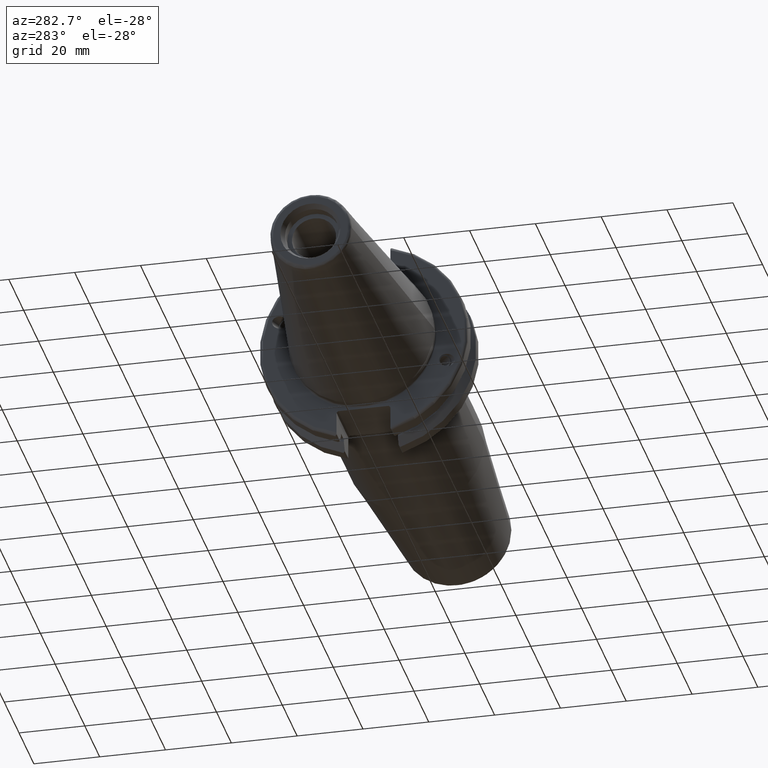
[diagram: clean part render]
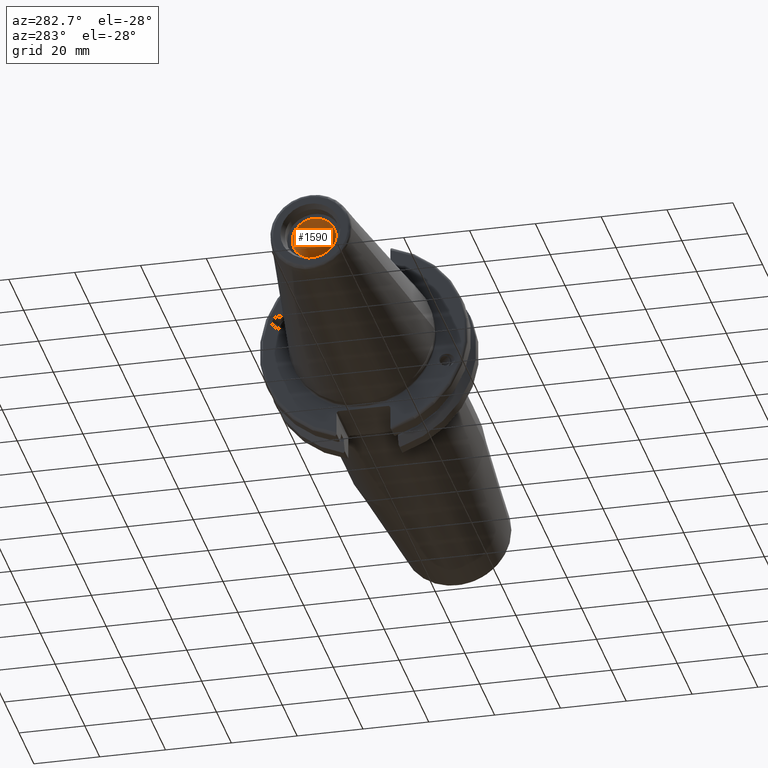
[diagram: same view with one face highlighted and labeled with its STEP entity id]
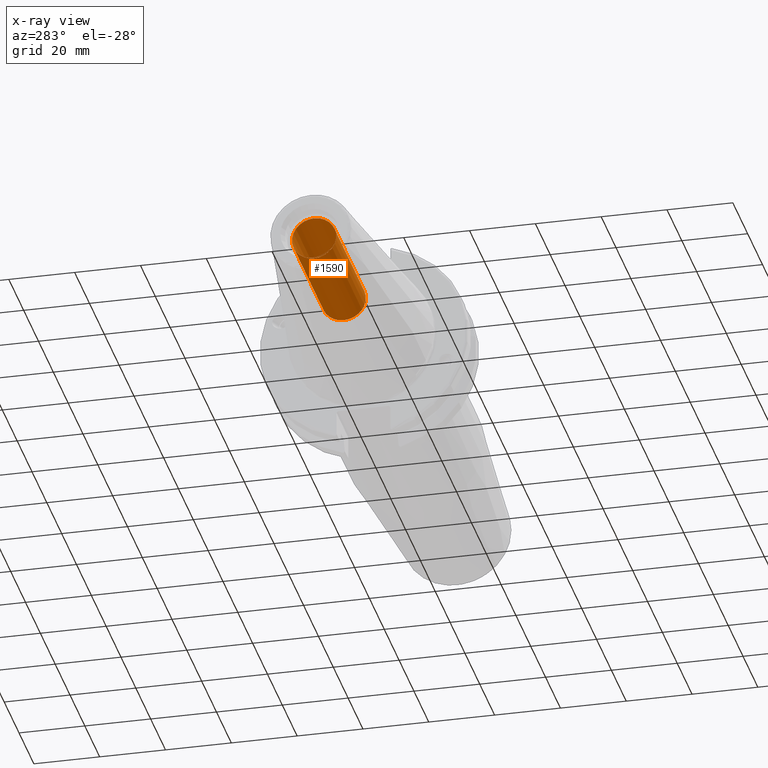
[diagram: x-ray of the same camera — body ghosted, the highlighted face saturated]
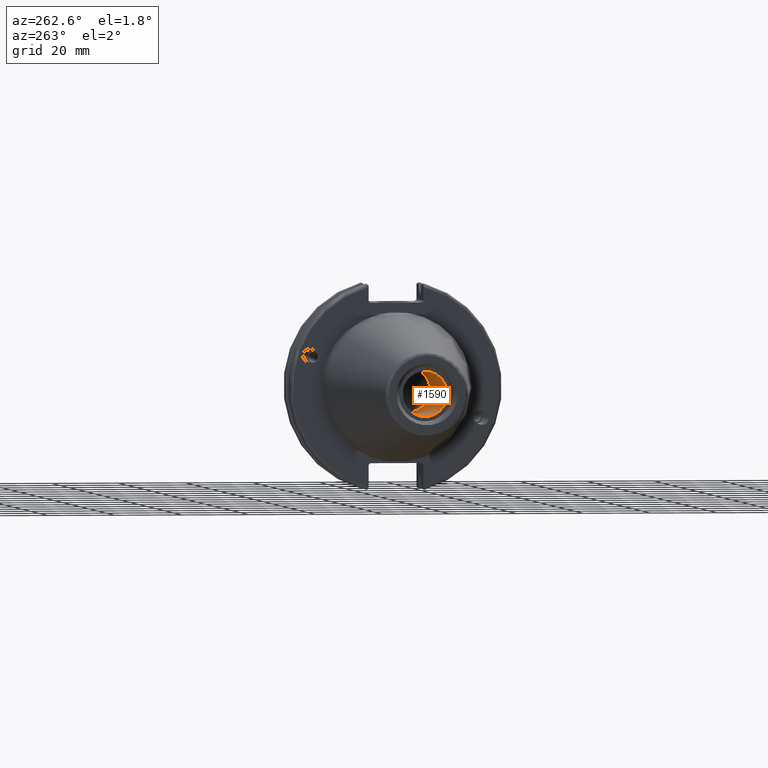
[diagram: same view with one face highlighted and labeled with its STEP entity id]
A machine part, auxiliary view. The second image highlights one B-rep face of the part: STEP entity #1590.
The next image is the same camera in x-ray: the body ghosted, the highlighted face saturated — about 1% of this face is hidden behind the body in this view.
A second angle (auxiliary view) of the same face is appended — the face is thin or edge-on in the first view.
In plain terms, the highlighted cylindrical surface (bore or boss wall) has radius 6.6929 mm, axis along (-1, 0, 0).
Its self-contained STEP definition (entity closure, byte-faithful):
#168=CYLINDRICAL_SURFACE('',#1767,6.6929);
#221=FACE_OUTER_BOUND('',#323,.T.);
#323=EDGE_LOOP('',(#1269,#1270,#1271,#1272));
#417=LINE('',#2799,#514);
#514=VECTOR('',#2105,6.6929);
#613=CIRCLE('',#1766,6.6929);
#614=CIRCLE('',#1768,6.6929);
#738=VERTEX_POINT('',#2793);
#739=VERTEX_POINT('',#2797);
#933=EDGE_CURVE('',#738,#738,#613,.T.);
#935=EDGE_CURVE('',#739,#739,#614,.T.);
#936=EDGE_CURVE('',#739,#738,#417,.T.);
#1269=ORIENTED_EDGE('',*,*,#935,.F.);
#1270=ORIENTED_EDGE('',*,*,#936,.T.);
#1271=ORIENTED_EDGE('',*,*,#933,.F.);
#1272=ORIENTED_EDGE('',*,*,#936,.F.);
#1590=ADVANCED_FACE('',(#221),#168,.F.);
#1766=AXIS2_PLACEMENT_3D('',#2794,#2098,#2099);
#1767=AXIS2_PLACEMENT_3D('',#2796,#2101,#2102);
#1768=AXIS2_PLACEMENT_3D('',#2798,#2103,#2104);
#2098=DIRECTION('center_axis',(-1.,0.,0.));
#2099=DIRECTION('ref_axis',(0.,0.,1.));
#2101=DIRECTION('center_axis',(-1.,0.,0.));
#2102=DIRECTION('ref_axis',(0.,0.,1.));
#2103=DIRECTION('center_axis',(1.,0.,0.));
#2104=DIRECTION('ref_axis',(0.,0.,1.));
#2105=DIRECTION('',(1.,0.,0.));
#2793=CARTESIAN_POINT('',(-23.25,-8.19643856201332E-16,-6.6929));
#2794=CARTESIAN_POINT('Origin',(-23.25,0.,0.));
#2796=CARTESIAN_POINT('Origin',(-45.75,0.,0.));
#2797=CARTESIAN_POINT('',(-63.45,8.19643856201332E-16,-6.6929));
#2798=CARTESIAN_POINT('Origin',(-63.45,0.,0.));
#2799=CARTESIAN_POINT('',(-45.75,-8.19643856201332E-16,-6.6929));